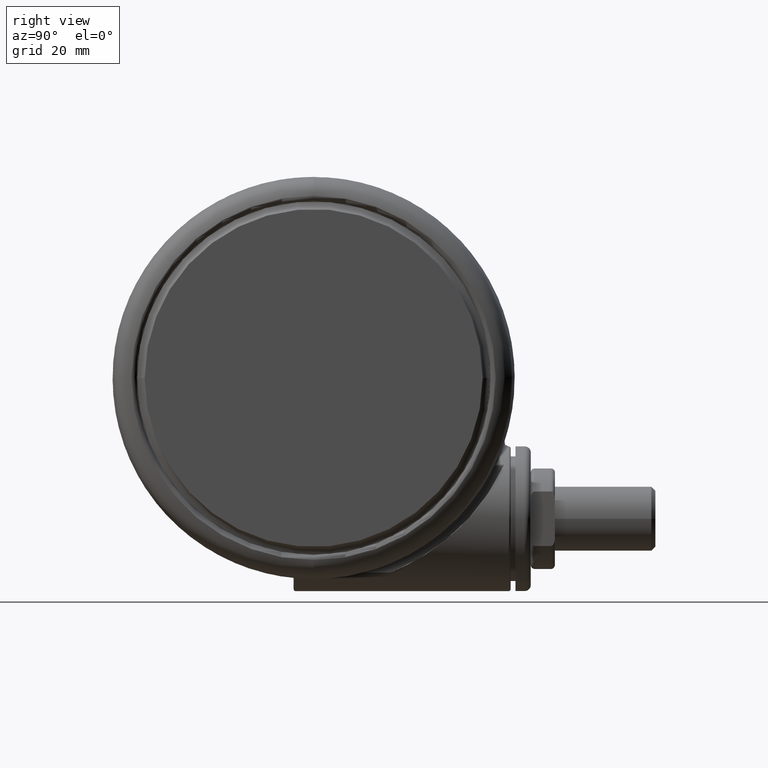
[diagram: clean part render]
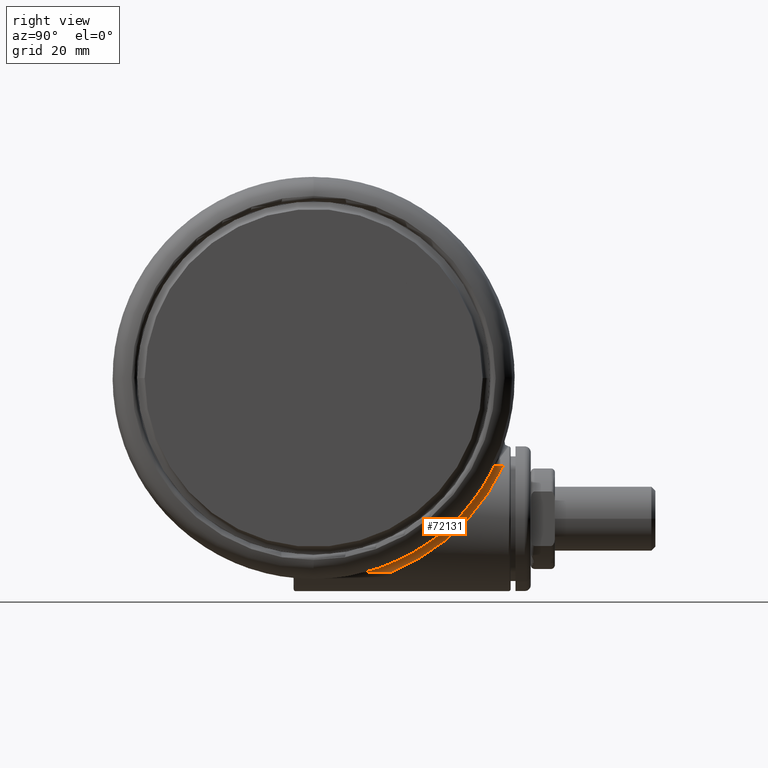
[diagram: same view with one face highlighted and labeled with its STEP entity id]
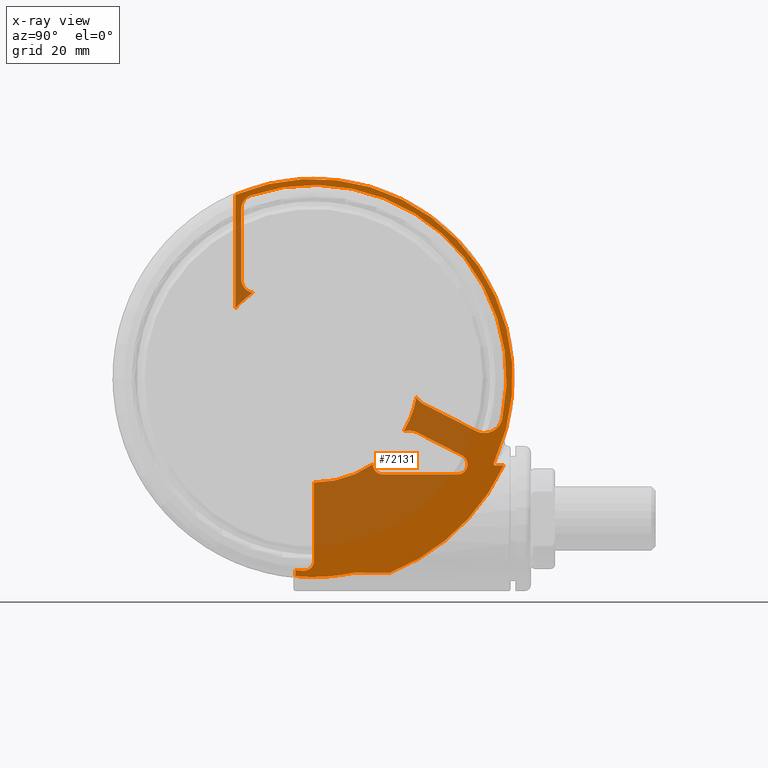
[diagram: x-ray of the same camera — body ghosted, the highlighted face saturated]
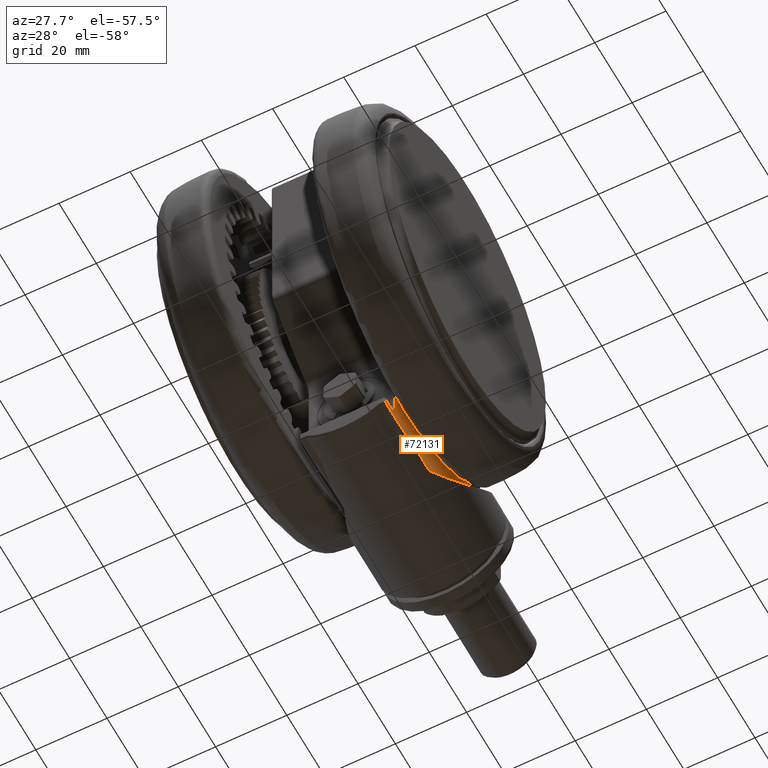
[diagram: same view with one face highlighted and labeled with its STEP entity id]
A machine part, right view. The second image highlights one B-rep face of the part: STEP entity #72131.
The next image is the same camera in x-ray: the body ghosted, the highlighted face saturated — about 45% of this face is hidden behind the body in this view.
A second angle (auxiliary view) of the same face is appended — the face is thin or edge-on in the first view.
In plain terms, the highlighted planar face has unit normal (1, 0, 0).
Its self-contained STEP definition (entity closure, byte-faithful):
#312 = EDGE_CURVE ( 'NONE', #71730, #3765, #16324, .T. ) ;
#459 = VERTEX_POINT ( 'NONE', #41174 ) ;
#579 = DIRECTION ( 'NONE',  ( -6.840638082025723500E-013, -1.000000000000000000, 0.0000000000000000000 ) ) ;
#788 = EDGE_CURVE ( 'NONE', #39920, #29850, #35790, .T. ) ;
#951 = CARTESIAN_POINT ( 'NONE',  ( 22.39215429168072200, -13.31101890000830700, -20.60000000000001200 ) ) ;
#1016 = VERTEX_POINT ( 'NONE', #9565 ) ;
#1365 = DIRECTION ( 'NONE',  ( 1.049160783082849200E-014, -1.000000000000000000, 0.0000000000000000000 ) ) ;
#1442 = AXIS2_PLACEMENT_3D ( 'NONE', #76241, #40599, #4919 ) ;
#1590 = CARTESIAN_POINT ( 'NONE',  ( -18.00023896682637000, 24.59374920584476200, -20.60000000000001200 ) ) ;
#1603 = VERTEX_POINT ( 'NONE', #65329 ) ;
#1855 = CARTESIAN_POINT ( 'NONE',  ( 25.77439557732822800, -13.59757127556933100, -20.60000000000001200 ) ) ;
#1858 = VECTOR ( 'NONE', #26728, 1000.000000000000000 ) ;
#2201 = VECTOR ( 'NONE', #66815, 1000.000000000000000 ) ;
#2713 = DIRECTION ( 'NONE',  ( 1.049160783082849200E-014, -1.000000000000000000, 0.0000000000000000000 ) ) ;
#2727 = AXIS2_PLACEMENT_3D ( 'NONE', #51675, #16020, #57656 ) ;
#2933 = ORIENTED_EDGE ( 'NONE', *, *, #39198, .F. ) ;
#3355 = EDGE_CURVE ( 'NONE', #63427, #29986, #65954, .T. ) ;
#3526 = CARTESIAN_POINT ( 'NONE',  ( -19.19411651784699300, 45.62724037848899900, -20.60000000000001200 ) ) ;
#3653 = DIRECTION ( 'NONE',  ( 0.0000000000000000000, 0.0000000000000000000, 1.000000000000000000 ) ) ;
#3719 = LINE ( 'NONE', #56400, #1858 ) ;
#3765 = VERTEX_POINT ( 'NONE', #9797 ) ;
#4055 = DIRECTION ( 'NONE',  ( 5.551115123125785900E-015, -1.000000000000000000, 0.0000000000000000000 ) ) ;
#4188 = ORIENTED_EDGE ( 'NONE', *, *, #33538, .T. ) ;
#4587 = EDGE_CURVE ( 'NONE', #39704, #8065, #54020, .T. ) ;
#4599 = ORIENTED_EDGE ( 'NONE', *, *, #22731, .T. ) ;
#4663 = CARTESIAN_POINT ( 'NONE',  ( 23.73143832850031700, -17.60710063441700200, -20.60000000000001200 ) ) ;
#4802 = VERTEX_POINT ( 'NONE', #41630 ) ;
#4919 = DIRECTION ( 'NONE',  ( 1.110223024625157200E-014, -1.000000000000000000, 0.0000000000000000000 ) ) ;
#4978 = CARTESIAN_POINT ( 'NONE',  ( -19.00023896682659000, 45.16635916254469400, -20.60000000000001200 ) ) ;
#5669 = CARTESIAN_POINT ( 'NONE',  ( 44.86457795871726300, -21.60698457730831000, -20.59999999999992000 ) ) ;
#5767 = VERTEX_POINT ( 'NONE', #63102 ) ;
#5818 = CARTESIAN_POINT ( 'NONE',  ( -15.19069247404778600, 21.16252872992584200, -20.60000000000001200 ) ) ;
#5956 = LINE ( 'NONE', #63251, #37634 ) ;
#6037 = CIRCLE ( 'NONE', #40685, 0.5000000000000004400 ) ;
#6130 = CARTESIAN_POINT ( 'NONE',  ( -0.0002389668261144548000, 0.0000000000000000000, -20.60000000000001200 ) ) ;
#6162 = CARTESIAN_POINT ( 'NONE',  ( -2.400238966825637600, -45.43665920817682700, -20.60000000000001200 ) ) ;
#6239 = DIRECTION ( 'NONE',  ( -0.0000000000000000000, -0.0000000000000000000, -1.000000000000000000 ) ) ;
#6594 = VECTOR ( 'NONE', #75853, 1000.000000000000000 ) ;
#7153 = CIRCLE ( 'NONE', #64312, 4.500000000000000900 ) ;
#7432 = ORIENTED_EDGE ( 'NONE', *, *, #4587, .T. ) ;
#7477 = CIRCLE ( 'NONE', #43609, 49.50000000000000000 ) ;
#7491 = AXIS2_PLACEMENT_3D ( 'NONE', #58054, #22375, #64030 ) ;
#7678 = EDGE_CURVE ( 'NONE', #38695, #16139, #7153, .T. ) ;
#8003 = CARTESIAN_POINT ( 'NONE',  ( -0.0002389668261144548000, 0.0000000000000000000, -20.60000000000001200 ) ) ;
#8065 = VERTEX_POINT ( 'NONE', #60213 ) ;
#8543 = AXIS2_PLACEMENT_3D ( 'NONE', #75365, #39742, #4055 ) ;
#8919 = AXIS2_PLACEMENT_3D ( 'NONE', #51647, #15991, #57633 ) ;
#9565 = CARTESIAN_POINT ( 'NONE',  ( -19.50023896682659000, 45.16635916254469400, -20.60000000000001200 ) ) ;
#9606 = DIRECTION ( 'NONE',  ( -0.8910065241883725600, 0.4539904997395375900, -0.0000000000000000000 ) ) ;
#9797 = CARTESIAN_POINT ( 'NONE',  ( 25.58753988472823300, -4.885496233132261800, -20.60000000000001200 ) ) ;
#9900 = CARTESIAN_POINT ( 'NONE',  ( -18.00023896682655400, 42.07136793592506100, -20.60000000000001200 ) ) ;
#10309 = ORIENTED_EDGE ( 'NONE', *, *, #36807, .T. ) ;
#10686 = DIRECTION ( 'NONE',  ( 1.079383496163346400E-014, -1.000000000000000000, 0.0000000000000000000 ) ) ;
#10787 = CIRCLE ( 'NONE', #32308, 48.00000000000000000 ) ;
#11007 = DIRECTION ( 'NONE',  ( 1.387778780781444400E-014, -1.000000000000000000, 0.0000000000000000000 ) ) ;
#11065 = CIRCLE ( 'NONE', #46072, 49.50000000000000000 ) ;
#11131 = VERTEX_POINT ( 'NONE', #31285 ) ;
#11535 = AXIS2_PLACEMENT_3D ( 'NONE', #4663, #46340, #10686 ) ;
#11688 = CARTESIAN_POINT ( 'NONE',  ( 44.81260676000347600, -21.45701425049590200, -20.60000000000011500 ) ) ;
#11740 = EDGE_CURVE ( 'NONE', #43052, #39704, #57959, .T. ) ;
#12144 = DIRECTION ( 'NONE',  ( 6.050715233836520000E-015, -1.000000000000000000, 0.0000000000000000000 ) ) ;
#12172 = DIRECTION ( 'NONE',  ( 9.540979117872431100E-015, -1.000000000000000000, 0.0000000000000000000 ) ) ;
#12487 = DIRECTION ( 'NONE',  ( 0.8910065241883722300, -0.4539904997395383700, -0.0000000000000000000 ) ) ;
#14041 = DIRECTION ( 'NONE',  ( 1.049160858419006200E-014, -1.000000000000000000, 0.0000000000000000000 ) ) ;
#15393 = EDGE_CURVE ( 'NONE', #16212, #63427, #33894, .T. ) ;
#15991 = DIRECTION ( 'NONE',  ( -0.0000000000000000000, -0.0000000000000000000, -1.000000000000000000 ) ) ;
#16020 = DIRECTION ( 'NONE',  ( -0.0000000000000000000, -0.0000000000000000000, -1.000000000000000000 ) ) ;
#16139 = VERTEX_POINT ( 'NONE', #67284 ) ;
#16212 = VERTEX_POINT ( 'NONE', #21470 ) ;
#16287 = CARTESIAN_POINT ( 'NONE',  ( -0.0002389668261144548000, 0.0000000000000000000, -20.60000000000001200 ) ) ;
#16324 = CIRCLE ( 'NONE', #23525, 4.500000000000000900 ) ;
#16431 = ORIENTED_EDGE ( 'NONE', *, *, #53826, .T. ) ;
#16535 = CARTESIAN_POINT ( 'NONE',  ( -19.50023896682628100, 15.72426468869034200, -20.60000000000001200 ) ) ;
#17150 = DIRECTION ( 'NONE',  ( 0.0000000000000000000, 0.0000000000000000000, 1.000000000000000000 ) ) ;
#17299 = EDGE_CURVE ( 'NONE', #459, #46532, #20701, .T. ) ;
#17404 = CARTESIAN_POINT ( 'NONE',  ( 45.10763490342471000, -21.80016712219102700, -20.59999999999900000 ) ) ;
#17557 = ORIENTED_EDGE ( 'NONE', *, *, #72252, .T. ) ;
#17674 = CARTESIAN_POINT ( 'NONE',  ( 44.80125695201682800, -21.19218587818825500, -20.60000000000016500 ) ) ;
#17950 = CIRCLE ( 'NONE', #8919, 3.500000000000003100 ) ;
#18053 = ORIENTED_EDGE ( 'NONE', *, *, #43369, .T. ) ;
#18220 = CIRCLE ( 'NONE', #22793, 1.000000000000000900 ) ;
#18254 = CARTESIAN_POINT ( 'NONE',  ( 0.09976103317436226000, -45.43665920817679900, -20.60000000000001200 ) ) ;
#18621 = DIRECTION ( 'NONE',  ( 1.040834085586083300E-014, -1.000000000000000000, 0.0000000000000000000 ) ) ;
#18704 = DIRECTION ( 'NONE',  ( -0.0000000000000000000, -0.0000000000000000000, -1.000000000000000000 ) ) ;
#18766 = CARTESIAN_POINT ( 'NONE',  ( -2.400238966825637600, -45.43665920817682700, -20.60000000000001200 ) ) ;
#18777 = EDGE_CURVE ( 'NONE', #46532, #11131, #38164, .T. ) ;
#19412 = CARTESIAN_POINT ( 'NONE',  ( -0.0002389668258862782200, -21.80909404172710400, -20.60000000000001200 ) ) ;
#19653 = ORIENTED_EDGE ( 'NONE', *, *, #37781, .T. ) ;
#20672 = DIRECTION ( 'NONE',  ( -0.0000000000000000000, -0.0000000000000000000, -1.000000000000000000 ) ) ;
#20701 = CIRCLE ( 'NONE', #8543, 2.499999999999998700 ) ;
#21363 = ORIENTED_EDGE ( 'NONE', *, *, #39969, .T. ) ;
#21470 = CARTESIAN_POINT ( 'NONE',  ( 47.20530537998901400, -21.80909404172660600, -20.60000000000001200 ) ) ;
#21572 = CARTESIAN_POINT ( 'NONE',  ( 27.39588332905580600, -6.567476887677533300, -20.60000000000001200 ) ) ;
#22257 = DIRECTION ( 'NONE',  ( 1.137978617887305200E-014, -1.000000000000000000, 0.0000000000000000000 ) ) ;
#22375 = DIRECTION ( 'NONE',  ( -0.0000000000000000000, -0.0000000000000000000, -1.000000000000000000 ) ) ;
#22731 = EDGE_CURVE ( 'NONE', #11131, #4802, #63350, .T. ) ;
#22793 = AXIS2_PLACEMENT_3D ( 'NONE', #71881, #36251, #579 ) ;
#23160 = AXIS2_PLACEMENT_3D ( 'NONE', #24465, #66069, #30460 ) ;
#23525 = AXIS2_PLACEMENT_3D ( 'NONE', #45489, #45399, #45152 ) ;
#23664 = CARTESIAN_POINT ( 'NONE',  ( 44.87861867912889800, -20.88422164522064200, -20.60000000000000900 ) ) ;
#23724 = ORIENTED_EDGE ( 'NONE', *, *, #15393, .T. ) ;
#24263 = DIRECTION ( 'NONE',  ( 1.052315177622723300E-014, -1.000000000000000000, -0.0000000000000000000 ) ) ;
#24276 = EDGE_CURVE ( 'NONE', #41775, #39920, #51040, .T. ) ;
#24465 = CARTESIAN_POINT ( 'NONE',  ( -0.0002389668261144548000, 0.0000000000000000000, -20.60000000000001200 ) ) ;
#26571 = CARTESIAN_POINT ( 'NONE',  ( 45.21464099433291800, -21.80908848429182400, -20.60000000000001200 ) ) ;
#26660 = CARTESIAN_POINT ( 'NONE',  ( -2.532107098693746400, -47.93317894488982500, -20.60000000000001200 ) ) ;
#26728 = DIRECTION ( 'NONE',  ( -1.000000000000000000, -1.046245195070962800E-014, 0.0000000000000000000 ) ) ;
#27179 = ORIENTED_EDGE ( 'NONE', *, *, #28320, .T. ) ;
#27629 = DIRECTION ( 'NONE',  ( 1.049160758270772000E-014, -1.000000000000000000, 0.0000000000000000000 ) ) ;
#28040 = CARTESIAN_POINT ( 'NONE',  ( 0.09976103317436226000, -45.43665920817679900, -20.60000000000001200 ) ) ;
#28320 = EDGE_CURVE ( 'NONE', #29850, #1603, #10787, .T. ) ;
#29165 = VECTOR ( 'NONE', #24263, 1000.000000000000000 ) ;
#29850 = VERTEX_POINT ( 'NONE', #26660 ) ;
#29986 = VERTEX_POINT ( 'NONE', #39593 ) ;
#30031 = CARTESIAN_POINT ( 'NONE',  ( 10.30031681672743300, -48.41640786499859000, -20.60000000000001200 ) ) ;
#30460 = DIRECTION ( 'NONE',  ( 1.049160783082849200E-014, -1.000000000000000000, 0.0000000000000000000 ) ) ;
#31285 = CARTESIAN_POINT ( 'NONE',  ( 17.22626677287653900, -23.99999999999981900, -20.60000000000001200 ) ) ;
#31304 = ORIENTED_EDGE ( 'NONE', *, *, #18777, .T. ) ;
#31505 = VECTOR ( 'NONE', #12487, 1000.000000000000100 ) ;
#31971 = ORIENTED_EDGE ( 'NONE', *, *, #62412, .T. ) ;
#32103 = VERTEX_POINT ( 'NONE', #951 ) ;
#32308 = AXIS2_PLACEMENT_3D ( 'NONE', #33122, #74710, #39075 ) ;
#33122 = CARTESIAN_POINT ( 'NONE',  ( -0.0002389668261144548000, 0.0000000000000000000, -20.60000000000001200 ) ) ;
#33538 = EDGE_CURVE ( 'NONE', #3765, #32103, #67977, .T. ) ;
#33840 = CARTESIAN_POINT ( 'NONE',  ( -2.400238966825611400, -47.93665920817682700, -20.60000000000001200 ) ) ;
#33894 = LINE ( 'NONE', #19412, #2201 ) ;
#33942 = ORIENTED_EDGE ( 'NONE', *, *, #34189, .T. ) ;
#34189 = EDGE_CURVE ( 'NONE', #5767, #40279, #11065, .T. ) ;
#34786 = LINE ( 'NONE', #21572, #46909 ) ;
#35312 = CARTESIAN_POINT ( 'NONE',  ( 0.1037530491422218500, -26.04979243027890200, -20.60000000000001200 ) ) ;
#35347 = CARTESIAN_POINT ( 'NONE',  ( 45.00976408853295400, -21.76119032294524700, -20.59999999999898900 ) ) ;
#35790 = CIRCLE ( 'NONE', #48497, 2.500000000000002200 ) ;
#36163 = CARTESIAN_POINT ( 'NONE',  ( 36.91203829878669000, -19.27248368952866300, -20.60000000000001200 ) ) ;
#36251 = DIRECTION ( 'NONE',  ( -0.0000000000000000000, -0.0000000000000000000, -1.000000000000000000 ) ) ;
#36338 = EDGE_CURVE ( 'NONE', #72547, #1016, #6037, .T. ) ;
#36807 = EDGE_CURVE ( 'NONE', #1603, #5767, #5956, .T. ) ;
#37034 = DIRECTION ( 'NONE',  ( 0.0000000000000000000, 0.0000000000000000000, 1.000000000000000000 ) ) ;
#37634 = VECTOR ( 'NONE', #27629, 1000.000000000000000 ) ;
#37781 = EDGE_CURVE ( 'NONE', #8065, #66486, #17950, .T. ) ;
#38164 = LINE ( 'NONE', #44052, #52169 ) ;
#38395 = DIRECTION ( 'NONE',  ( 0.0000000000000000000, 0.0000000000000000000, 1.000000000000000000 ) ) ;
#38695 = VERTEX_POINT ( 'NONE', #51259 ) ;
#38973 = CARTESIAN_POINT ( 'NONE',  ( 0.09976103317415885300, -26.04980039840634700, -20.60000000000001200 ) ) ;
#39075 = DIRECTION ( 'NONE',  ( 1.049160706213539700E-014, -1.000000000000000000, 0.0000000000000000000 ) ) ;
#39198 = EDGE_CURVE ( 'NONE', #73006, #73080, #3719, .T. ) ;
#39340 = CARTESIAN_POINT ( 'NONE',  ( -0.0002389668261144548000, 0.0000000000000000000, -20.60000000000001200 ) ) ;
#39593 = CARTESIAN_POINT ( 'NONE',  ( 44.92318517317475100, -20.78785875005337800, -20.60000000000001200 ) ) ;
#39704 = VERTEX_POINT ( 'NONE', #1590 ) ;
#39742 = DIRECTION ( 'NONE',  ( -0.0000000000000000000, -0.0000000000000000000, -1.000000000000000000 ) ) ;
#39920 = VERTEX_POINT ( 'NONE', #33840 ) ;
#39969 = EDGE_CURVE ( 'NONE', #4802, #63627, #72096, .T. ) ;
#39986 = EDGE_CURVE ( 'NONE', #32103, #62897, #70225, .T. ) ;
#39996 = VECTOR ( 'NONE', #45582, 1000.000000000000000 ) ;
#40279 = VERTEX_POINT ( 'NONE', #61416 ) ;
#40599 = DIRECTION ( 'NONE',  ( -0.0000000000000000000, -0.0000000000000000000, -1.000000000000000000 ) ) ;
#40685 = AXIS2_PLACEMENT_3D ( 'NONE', #4978, #46658, #11007 ) ;
#40839 = PLANE ( 'NONE',  #72513 ) ;
#41174 = CARTESIAN_POINT ( 'NONE',  ( 36.91203829878669000, -19.27248368952866300, -20.60000000000001200 ) ) ;
#41344 = CARTESIAN_POINT ( 'NONE',  ( 44.89243160186396200, -21.65328046991935900, -20.60000000000005500 ) ) ;
#41630 = CARTESIAN_POINT ( 'NONE',  ( 14.72629584977283200, -21.48794248632239600, -20.60000000000001200 ) ) ;
#41775 = VERTEX_POINT ( 'NONE', #28040 ) ;
#41818 = EDGE_CURVE ( 'NONE', #1016, #48275, #42048, .T. ) ;
#41932 = CARTESIAN_POINT ( 'NONE',  ( 42.51166705422224400, -9.218885315348742900, -20.60000000000001200 ) ) ;
#42048 = LINE ( 'NONE', #16535, #6594 ) ;
#42082 = EDGE_CURVE ( 'NONE', #40279, #73080, #7477, .T. ) ;
#42262 = ORIENTED_EDGE ( 'NONE', *, *, #67222, .T. ) ;
#43052 = VERTEX_POINT ( 'NONE', #5818 ) ;
#43369 = EDGE_CURVE ( 'NONE', #73006, #16212, #71588, .T. ) ;
#43609 = AXIS2_PLACEMENT_3D ( 'NONE', #72694, #37034, #1365 ) ;
#43741 = ORIENTED_EDGE ( 'NONE', *, *, #39986, .T. ) ;
#44041 = CARTESIAN_POINT ( 'NONE',  ( -15.64068840502884300, 45.38035193088552400, -20.60000000000001200 ) ) ;
#44052 = CARTESIAN_POINT ( 'NONE',  ( 17.22626677287653900, -23.99999999999981900, -20.60000000000001200 ) ) ;
#44476 = AXIS2_PLACEMENT_3D ( 'NONE', #6162, #47830, #12172 ) ;
#45152 = DIRECTION ( 'NONE',  ( 1.079383496163346400E-014, -1.000000000000000000, 0.0000000000000000000 ) ) ;
#45361 = DIRECTION ( 'NONE',  ( 1.049160765600865800E-014, -1.000000000000000000, 0.0000000000000000000 ) ) ;
#45399 = DIRECTION ( 'NONE',  ( -0.0000000000000000000, -0.0000000000000000000, -1.000000000000000000 ) ) ;
#45475 = EDGE_CURVE ( 'NONE', #63627, #46245, #18220, .T. ) ;
#45489 = CARTESIAN_POINT ( 'NONE',  ( 29.43884057788371000, -2.557947528829851400, -20.60000000000001200 ) ) ;
#45582 = DIRECTION ( 'NONE',  ( -1.049160758270772000E-014, 1.000000000000000000, -0.0000000000000000000 ) ) ;
#46072 = AXIS2_PLACEMENT_3D ( 'NONE', #74047, #38395, #2713 ) ;
#46245 = VERTEX_POINT ( 'NONE', #38973 ) ;
#46340 = DIRECTION ( 'NONE',  ( -0.0000000000000000000, -0.0000000000000000000, -1.000000000000000000 ) ) ;
#46532 = VERTEX_POINT ( 'NONE', #54593 ) ;
#46658 = DIRECTION ( 'NONE',  ( 0.0000000000000000000, 0.0000000000000000000, 1.000000000000000000 ) ) ;
#46909 = VECTOR ( 'NONE', #9606, 999.9999999999998900 ) ;
#47273 = ORIENTED_EDGE ( 'NONE', *, *, #788, .T. ) ;
#47337 = LINE ( 'NONE', #36163, #31505 ) ;
#47352 = CARTESIAN_POINT ( 'NONE',  ( 44.82464038781873200, -21.50821783275873500, -20.59999999999991600 ) ) ;
#47606 = VERTEX_POINT ( 'NONE', #60929 ) ;
#47805 = DIRECTION ( 'NONE',  ( -0.0000000000000000000, -0.0000000000000000000, -1.000000000000000000 ) ) ;
#47830 = DIRECTION ( 'NONE',  ( -0.0000000000000000000, -0.0000000000000000000, -1.000000000000000000 ) ) ;
#47916 = DIRECTION ( 'NONE',  ( 1.079383496163346400E-014, -1.000000000000000000, 0.0000000000000000000 ) ) ;
#48275 = VERTEX_POINT ( 'NONE', #64182 ) ;
#48493 = ORIENTED_EDGE ( 'NONE', *, *, #42082, .T. ) ;
#48497 = AXIS2_PLACEMENT_3D ( 'NONE', #18766, #18704, #18621 ) ;
#48736 = CARTESIAN_POINT ( 'NONE',  ( 27.39588332905580600, -6.567476887677533300, -20.60000000000001200 ) ) ;
#49724 = DIRECTION ( 'NONE',  ( -0.0000000000000000000, -0.0000000000000000000, -1.000000000000000000 ) ) ;
#49764 = DIRECTION ( 'NONE',  ( -1.000000000000000000, -1.062067257266102400E-014, -0.0000000000000000000 ) ) ;
#50070 = ORIENTED_EDGE ( 'NONE', *, *, #24276, .T. ) ;
#50121 = ORIENTED_EDGE ( 'NONE', *, *, #60205, .T. ) ;
#50216 = ORIENTED_EDGE ( 'NONE', *, *, #3355, .T. ) ;
#51040 = CIRCLE ( 'NONE', #44476, 2.500000000000002200 ) ;
#51259 = CARTESIAN_POINT ( 'NONE',  ( 42.51166705422228600, -13.71888531534874300, -20.60000000000001200 ) ) ;
#51317 = AXIS2_PLACEMENT_3D ( 'NONE', #6130, #47805, #12144 ) ;
#51647 = CARTESIAN_POINT ( 'NONE',  ( -14.50023896682655400, 42.07136793592509600, -20.60000000000001200 ) ) ;
#51675 = CARTESIAN_POINT ( 'NONE',  ( -14.50023896682637500, 24.59374920584479800, -20.60000000000001200 ) ) ;
#52169 = VECTOR ( 'NONE', #49764, 1000.000000000000000 ) ;
#52335 = ORIENTED_EDGE ( 'NONE', *, *, #17299, .T. ) ;
#52422 = CARTESIAN_POINT ( 'NONE',  ( 18.96951193955399300, -48.41640786499849700, -20.60000000000001200 ) ) ;
#52592 = CARTESIAN_POINT ( 'NONE',  ( -0.0002389668261144548000, 0.0000000000000000000, -20.60000000000001200 ) ) ;
#53262 = AXIS2_PLACEMENT_3D ( 'NONE', #41932, #6239, #47916 ) ;
#53278 = EDGE_CURVE ( 'NONE', #62897, #459, #47337, .T. ) ;
#53369 = CARTESIAN_POINT ( 'NONE',  ( 44.79267421280995600, -21.29969472204177100, -20.60000000000011500 ) ) ;
#53771 = FACE_OUTER_BOUND ( 'NONE', #74825, .T. ) ;
#53826 = EDGE_CURVE ( 'NONE', #48275, #43052, #70888, .T. ) ;
#54020 = LINE ( 'NONE', #9900, #39996 ) ;
#54542 = ORIENTED_EDGE ( 'NONE', *, *, #69098, .T. ) ;
#54593 = CARTESIAN_POINT ( 'NONE',  ( 35.77706204943788000, -23.99999999999962700, -20.60000000000001200 ) ) ;
#54667 = CIRCLE ( 'NONE', #23160, 49.50000000000000000 ) ;
#54700 = ORIENTED_EDGE ( 'NONE', *, *, #7678, .T. ) ;
#56189 = ORIENTED_EDGE ( 'NONE', *, *, #53278, .T. ) ;
#56380 = CARTESIAN_POINT ( 'NONE',  ( 42.51166705422224400, -9.218885315348742900, -20.60000000000001200 ) ) ;
#56400 = CARTESIAN_POINT ( 'NONE',  ( 48.99976103317439400, -48.41640786499818500, -20.60000000000001200 ) ) ;
#57441 = ORIENTED_EDGE ( 'NONE', *, *, #11740, .T. ) ;
#57633 = DIRECTION ( 'NONE',  ( 1.040834085586083300E-014, -1.000000000000000000, 0.0000000000000000000 ) ) ;
#57656 = DIRECTION ( 'NONE',  ( 1.040834085586084400E-014, -1.000000000000000000, 0.0000000000000000000 ) ) ;
#57944 = DIRECTION ( 'NONE',  ( -0.0000000000000000000, -0.0000000000000000000, -1.000000000000000000 ) ) ;
#57959 = CIRCLE ( 'NONE', #2727, 3.499999999999999600 ) ;
#58054 = CARTESIAN_POINT ( 'NONE',  ( -0.0002389668261144548000, 0.0000000000000000000, -20.60000000000001200 ) ) ;
#58817 = DIRECTION ( 'NONE',  ( 1.049160758270772000E-014, -1.000000000000000000, 0.0000000000000000000 ) ) ;
#59124 = ORIENTED_EDGE ( 'NONE', *, *, #36338, .T. ) ;
#59346 = CARTESIAN_POINT ( 'NONE',  ( 44.84428870269684400, -20.98417319682405600, -20.60000000000016500 ) ) ;
#59793 = CIRCLE ( 'NONE', #53262, 4.500000000000000900 ) ;
#60205 = EDGE_CURVE ( 'NONE', #46245, #41775, #72862, .T. ) ;
#60213 = CARTESIAN_POINT ( 'NONE',  ( -18.00023896682655400, 42.07136793592506100, -20.60000000000001200 ) ) ;
#60929 = CARTESIAN_POINT ( 'NONE',  ( 46.90945043570999200, -10.17256310659170800, -20.60000000000001200 ) ) ;
#61135 = AXIS2_PLACEMENT_3D ( 'NONE', #16287, #57944, #22257 ) ;
#61416 = CARTESIAN_POINT ( 'NONE',  ( -0.0002389668255924973200, -49.50000000000000000, -20.60000000000001200 ) ) ;
#62358 = DIRECTION ( 'NONE',  ( 1.079383496163346400E-014, -1.000000000000000000, 0.0000000000000000000 ) ) ;
#62412 = EDGE_CURVE ( 'NONE', #16139, #71730, #34786, .T. ) ;
#62897 = VERTEX_POINT ( 'NONE', #1855 ) ;
#63102 = CARTESIAN_POINT ( 'NONE',  ( -4.500238966825596900, -49.29503017546505100, -20.60000000000001200 ) ) ;
#63196 = ORIENTED_EDGE ( 'NONE', *, *, #41818, .T. ) ;
#63251 = CARTESIAN_POINT ( 'NONE',  ( -4.500238966825596900, -49.29503017546505100, -20.60000000000001200 ) ) ;
#63350 = CIRCLE ( 'NONE', #1442, 2.499999999999998700 ) ;
#63427 = VERTEX_POINT ( 'NONE', #26571 ) ;
#63494 = ORIENTED_EDGE ( 'NONE', *, *, #312, .T. ) ;
#63627 = VERTEX_POINT ( 'NONE', #35312 ) ;
#64030 = DIRECTION ( 'NONE',  ( 1.404432041935263200E-014, -1.000000000000000000, 0.0000000000000000000 ) ) ;
#64182 = CARTESIAN_POINT ( 'NONE',  ( -19.50023896682629500, 17.27288337250014300, -20.60000000000001200 ) ) ;
#64312 = AXIS2_PLACEMENT_3D ( 'NONE', #56380, #20672, #62358 ) ;
#65312 = CARTESIAN_POINT ( 'NONE',  ( 44.92318517317475100, -20.78785875005337800, -20.60000000000001200 ) ) ;
#65329 = CARTESIAN_POINT ( 'NONE',  ( -4.500238966825612900, -47.78859696622205200, -20.60000000000001200 ) ) ;
#65738 = CIRCLE ( 'NONE', #61135, 48.00000000000000000 ) ;
#65954 = B_SPLINE_CURVE_WITH_KNOTS ( 'NONE', 3,
 ( #71001, #70744, #17404, #35347, #76986, #41344, #5669, #47352, #11688, #53369, #17674, #59346, #23664, #65312 ),
 .UNSPECIFIED., .F., .F.,
 ( 4, 2, 2, 2, 2, 2, 4 ),
 ( 0.0000000000000000000, 0.0001602482056012133700, 0.0003204964112024267400, 0.0004807446168036400800, 0.0006409928224048534800, 0.0009614892336072906800, 0.001281985644809728000 ),
 .UNSPECIFIED. ) ;
#66069 = DIRECTION ( 'NONE',  ( 0.0000000000000000000, 0.0000000000000000000, 1.000000000000000000 ) ) ;
#66486 = VERTEX_POINT ( 'NONE', #44041 ) ;
#66815 = DIRECTION ( 'NONE',  ( -1.000000000000000000, -1.046245195070962800E-014, 0.0000000000000000000 ) ) ;
#66817 = ORIENTED_EDGE ( 'NONE', *, *, #45475, .T. ) ;
#67222 = EDGE_CURVE ( 'NONE', #66486, #47606, #65738, .T. ) ;
#67284 = CARTESIAN_POINT ( 'NONE',  ( 40.46870980539432600, -13.22841467419641700, -20.60000000000001200 ) ) ;
#67977 = CIRCLE ( 'NONE', #74438, 26.05000000000000100 ) ;
#69098 = EDGE_CURVE ( 'NONE', #47606, #38695, #59793, .T. ) ;
#70225 = CIRCLE ( 'NONE', #11535, 4.500000000000000900 ) ;
#70744 = CARTESIAN_POINT ( 'NONE',  ( 45.16121605200373800, -21.80907607284708000, -20.60000000000001900 ) ) ;
#70888 = CIRCLE ( 'NONE', #51317, 26.05000000000000100 ) ;
#71001 = CARTESIAN_POINT ( 'NONE',  ( 45.21464099433291800, -21.80908848429182400, -20.60000000000001200 ) ) ;
#71588 = CIRCLE ( 'NONE', #72026, 52.00000000000000000 ) ;
#71730 = VERTEX_POINT ( 'NONE', #48736 ) ;
#71881 = CARTESIAN_POINT ( 'NONE',  ( 0.09976103317414836100, -25.04980039840635100, -20.60000000000001200 ) ) ;
#72026 = AXIS2_PLACEMENT_3D ( 'NONE', #39340, #3653, #45361 ) ;
#72096 = CIRCLE ( 'NONE', #7491, 26.05000000000000100 ) ;
#72131 = ADVANCED_FACE ( 'NONE', ( #53771 ), #40839, .T. ) ;
#72252 = EDGE_CURVE ( 'NONE', #29986, #72547, #54667, .T. ) ;
#72513 = AXIS2_PLACEMENT_3D ( 'NONE', #52592, #17150, #58817 ) ;
#72547 = VERTEX_POINT ( 'NONE', #3526 ) ;
#72694 = CARTESIAN_POINT ( 'NONE',  ( -0.0002389668261144548000, 0.0000000000000000000, -20.60000000000001200 ) ) ;
#72862 = LINE ( 'NONE', #18254, #29165 ) ;
#73006 = VERTEX_POINT ( 'NONE', #52422 ) ;
#73080 = VERTEX_POINT ( 'NONE', #30031 ) ;
#74047 = CARTESIAN_POINT ( 'NONE',  ( -0.0002389668261144548000, 0.0000000000000000000, -20.60000000000001200 ) ) ;
#74438 = AXIS2_PLACEMENT_3D ( 'NONE', #8003, #49724, #14041 ) ;
#74710 = DIRECTION ( 'NONE',  ( -0.0000000000000000000, -0.0000000000000000000, -1.000000000000000000 ) ) ;
#74825 = EDGE_LOOP ( 'NONE', ( #63494, #4188, #43741, #56189, #52335, #31304, #4599, #21363, #66817, #50121, #50070, #47273, #27179, #10309, #33942, #48493, #2933, #18053, #23724, #50216, #17557, #59124, #63196, #16431, #57441, #7432, #19653, #42262, #54542, #54700, #31971 ) ) ;
#75365 = CARTESIAN_POINT ( 'NONE',  ( 35.77706204943785900, -21.49999999999962300, -20.60000000000001200 ) ) ;
#75853 = DIRECTION ( 'NONE',  ( 1.049160758270772000E-014, -1.000000000000000000, 0.0000000000000000000 ) ) ;
#76241 = CARTESIAN_POINT ( 'NONE',  ( 17.22626677287651000, -21.49999999999981900, -20.60000000000001200 ) ) ;
#76986 = CARTESIAN_POINT ( 'NONE',  ( 44.96482134403627400, -21.73050541018065800, -20.60000000000005100 ) ) ;